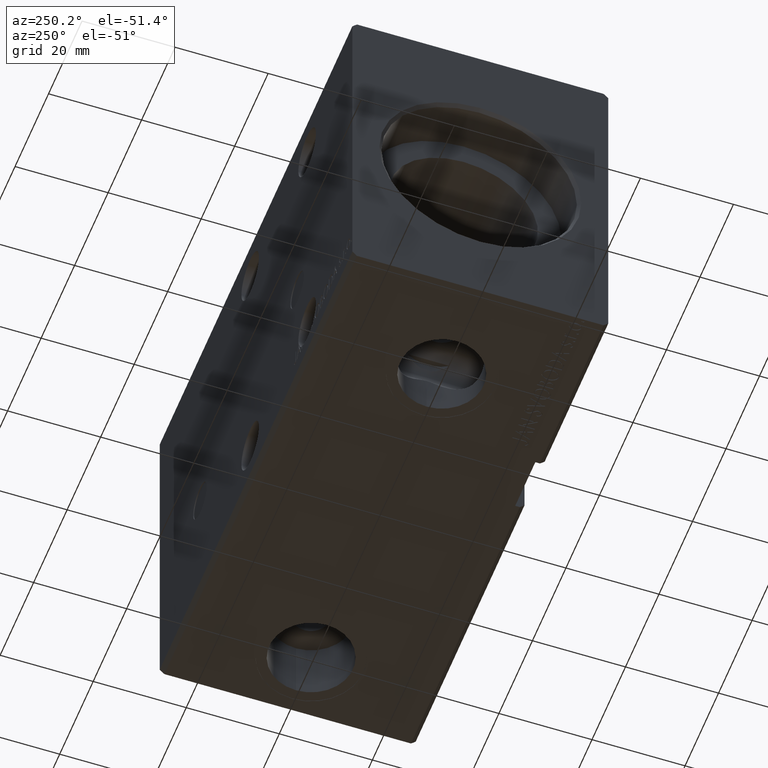
[diagram: clean part render]
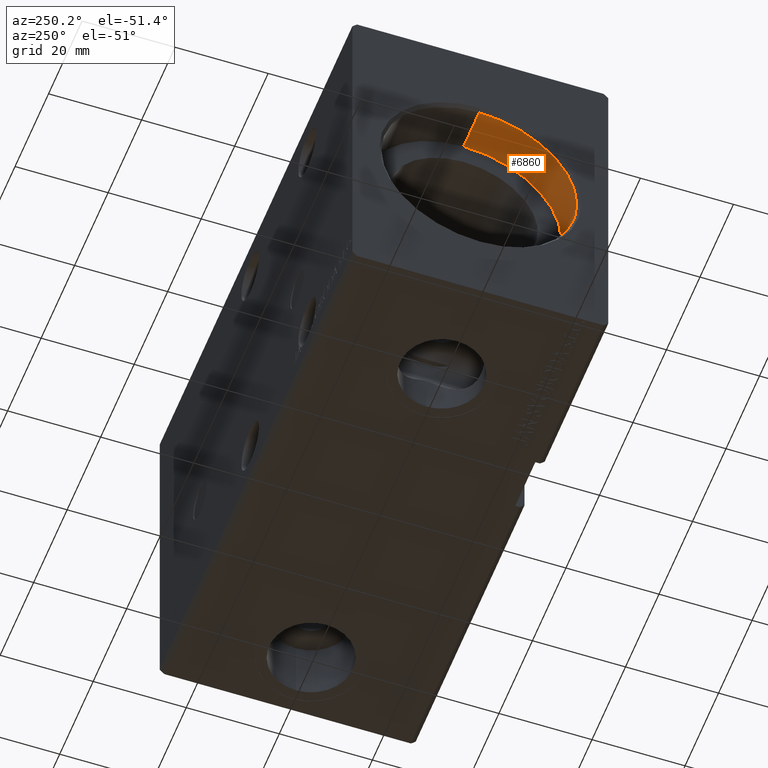
[diagram: same view with one face highlighted and labeled with its STEP entity id]
A machine part, auxiliary view. The second image highlights one B-rep face of the part: STEP entity #6860.
In plain terms, the highlighted cylindrical surface (partial cylindrical patch) has radius 21 mm, axis along (-1, -0, -0).
Its self-contained STEP definition (entity closure, byte-faithful):
#414 = EDGE_CURVE ( 'NONE', #29711, #2279, #31838, .T. ) ;
#1825 = ORIENTED_EDGE ( 'NONE', *, *, #35963, .F. ) ;
#1978 = LINE ( 'NONE', #11153, #4810 ) ;
#2279 = VERTEX_POINT ( 'NONE', #26564 ) ;
#2354 = DIRECTION ( 'NONE',  ( -1.000000000000000000, -0.000000000000000000, -0.000000000000000000 ) ) ;
#3392 = DIRECTION ( 'NONE',  ( 0.000000000000000000, 0.000000000000000000, 1.000000000000000000 ) ) ;
#3625 = DIRECTION ( 'NONE',  ( -1.000000000000000000, -0.000000000000000000, -0.000000000000000000 ) ) ;
#4810 = VECTOR ( 'NONE', #2354, 1000.000000000000000 ) ;
#6049 = DIRECTION ( 'NONE',  ( -1.000000000000000000, -0.000000000000000000, -0.000000000000000000 ) ) ;
#6860 = ADVANCED_FACE ( 'NONE', ( #27217 ), #11496, .F. ) ;
#7161 = CARTESIAN_POINT ( 'NONE',  ( 0.7000000000000443645, 0.000000000000000000, 0.000000000000000000 ) ) ;
#7646 = AXIS2_PLACEMENT_3D ( 'NONE', #7161, #25142, #31493 ) ;
#9631 = LINE ( 'NONE', #25193, #31605 ) ;
#9996 = CARTESIAN_POINT ( 'NONE',  ( 10.00000000000000000, 0.000000000000000000, 0.000000000000000000 ) ) ;
#11153 = CARTESIAN_POINT ( 'NONE',  ( 10.00000000000000000, 0.000000000000000000, 21.00000000000000000 ) ) ;
#11438 = AXIS2_PLACEMENT_3D ( 'NONE', #21248, #6049, #17480 ) ;
#11496 = CYLINDRICAL_SURFACE ( 'NONE', #11438, 21.00000000000000000 ) ;
#11808 = CARTESIAN_POINT ( 'NONE',  ( 10.00000000000000000, 2.571758278209441661E-15, -21.00000000000000000 ) ) ;
#12805 = DIRECTION ( 'NONE',  ( -1.000000000000000000, 0.000000000000000000, 0.000000000000000000 ) ) ;
#13258 = VERTEX_POINT ( 'NONE', #21329 ) ;
#17388 = EDGE_CURVE ( 'NONE', #38119, #29711, #9631, .T. ) ;
#17480 = DIRECTION ( 'NONE',  ( 0.000000000000000000, 0.000000000000000000, 1.000000000000000000 ) ) ;
#20102 = EDGE_CURVE ( 'NONE', #13258, #2279, #1978, .T. ) ;
#21248 = CARTESIAN_POINT ( 'NONE',  ( 10.00000000000000000, 0.000000000000000000, 0.000000000000000000 ) ) ;
#21329 = CARTESIAN_POINT ( 'NONE',  ( 10.00000000000000000, 0.000000000000000000, 21.00000000000000000 ) ) ;
#21817 = EDGE_LOOP ( 'NONE', ( #1825, #34645, #28306, #36551 ) ) ;
#24818 = AXIS2_PLACEMENT_3D ( 'NONE', #9996, #12805, #3392 ) ;
#25142 = DIRECTION ( 'NONE',  ( -1.000000000000000000, 0.000000000000000000, 0.000000000000000000 ) ) ;
#25193 = CARTESIAN_POINT ( 'NONE',  ( 10.00000000000000000, 2.571758278209441661E-15, -21.00000000000000000 ) ) ;
#26564 = CARTESIAN_POINT ( 'NONE',  ( 0.7000000000000443645, 0.000000000000000000, 21.00000000000000000 ) ) ;
#27217 = FACE_OUTER_BOUND ( 'NONE', #21817, .T. ) ;
#28306 = ORIENTED_EDGE ( 'NONE', *, *, #414, .T. ) ;
#29711 = VERTEX_POINT ( 'NONE', #36944 ) ;
#31493 = DIRECTION ( 'NONE',  ( 0.000000000000000000, 0.000000000000000000, -1.000000000000000000 ) ) ;
#31605 = VECTOR ( 'NONE', #3625, 1000.000000000000000 ) ;
#31838 = CIRCLE ( 'NONE', #7646, 21.00000000000000000 ) ;
#33796 = CIRCLE ( 'NONE', #24818, 21.00000000000000000 ) ;
#34645 = ORIENTED_EDGE ( 'NONE', *, *, #17388, .T. ) ;
#35963 = EDGE_CURVE ( 'NONE', #38119, #13258, #33796, .T. ) ;
#36551 = ORIENTED_EDGE ( 'NONE', *, *, #20102, .F. ) ;
#36944 = CARTESIAN_POINT ( 'NONE',  ( 0.7000000000000443645, 2.571758278209441661E-15, -21.00000000000000000 ) ) ;
#38119 = VERTEX_POINT ( 'NONE', #11808 ) ;